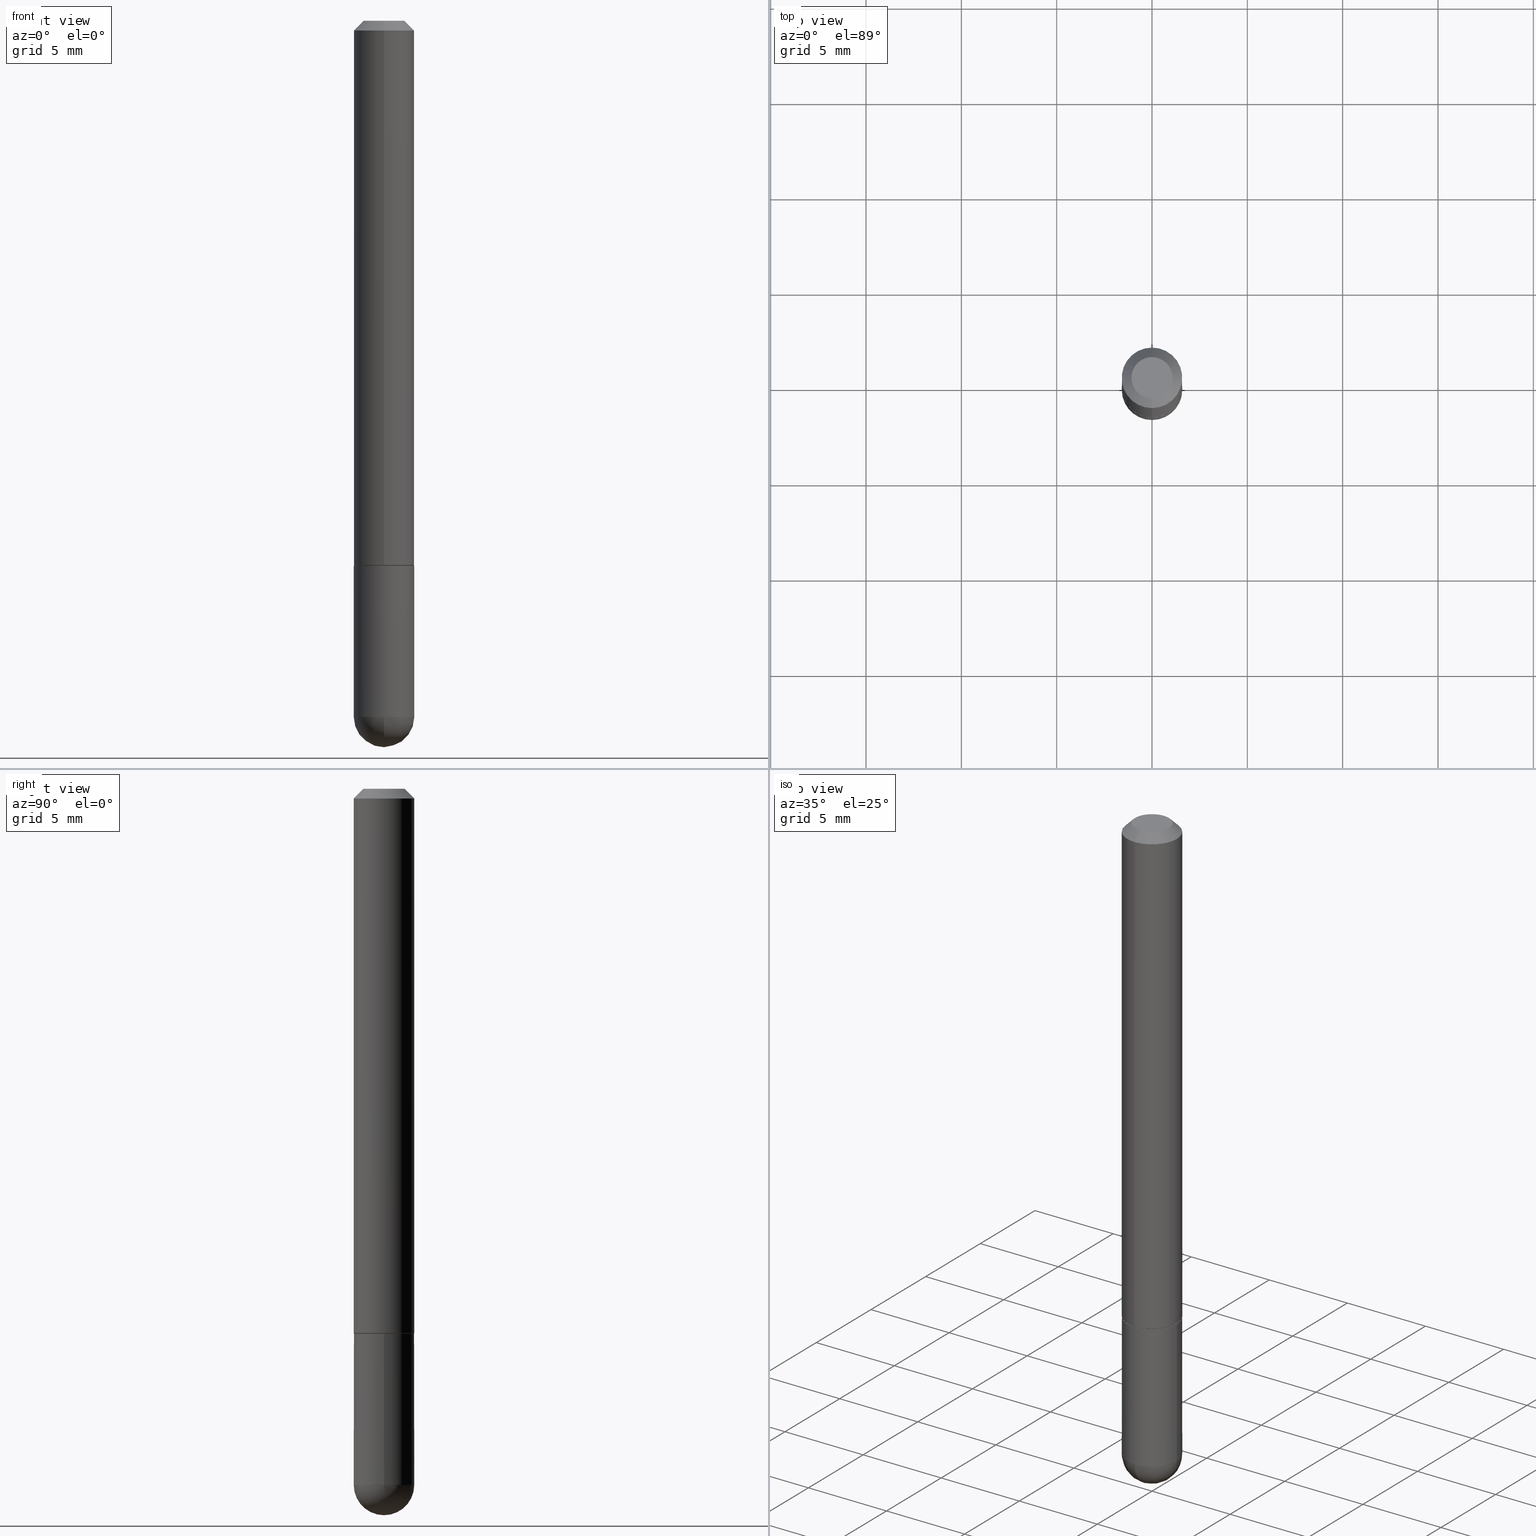
[diagram: canonical four-view strip — front | top / right | iso, engineering-drawing reading convention]
A machine part, canonical four-view strip (front | top / right | iso — engineering-drawing reading convention). The complete STEP part file that produces these views, byte-faithful:
ISO-10303-21;
HEADER;
FILE_DESCRIPTION (( 'STEP AP203' ),
    '1' );
FILE_NAME ('39078.STEP',
    '2024-02-21T19:20:46',
    ( '' ),
    ( '' ),
    'SwSTEP 2.0',
    'SolidWorks 2023',
    '' );
FILE_SCHEMA (( 'CONFIG_CONTROL_DESIGN' ));
ENDSEC;

DATA;
#1 = ADVANCED_FACE ( 'NONE', ( #42 ), #290, .F. ) ;
#2 = EDGE_LOOP ( 'NONE', ( #132, #406, #73, #159 ) ) ;
#3 = MECHANICAL_CONTEXT ( 'NONE', #303, 'mechanical' ) ;
#4 = DIRECTION ( 'NONE',  ( -1.000000000000000000, 6.982962677686265922E-15, -4.876176775795935793E-29 ) ) ;
#5 = AXIS2_PLACEMENT_3D ( 'NONE', #106, #361, #298 ) ;
#6 = ORIENTED_EDGE ( 'NONE', *, *, #161, .T. ) ;
#7 = ORIENTED_EDGE ( 'NONE', *, *, #31, .T. ) ;
#8 = SHAPE_DEFINITION_REPRESENTATION ( #78, #57 ) ;
#9 = EDGE_CURVE ( 'NONE', #139, #188, #130, .T. ) ;
#10 = DIRECTION ( 'NONE',  ( 2.438088387897960049E-29, -3.491481338843145188E-15, -1.000000000000000000 ) ) ;
#11 = CC_DESIGN_PERSON_AND_ORGANIZATION_ASSIGNMENT ( #255, #121, ( #307 ) ) ;
#12 = APPROVAL_PERSON_ORGANIZATION ( #272, #178, #244 ) ;
#13 = ORIENTED_EDGE ( 'NONE', *, *, #350, .T. ) ;
#14 = DIRECTION ( 'NONE',  ( 6.982962677686266711E-15, 1.000000000000000000, 0.000000000000000000 ) ) ;
#15 = APPROVAL ( #291, 'UNSPECIFIED' ) ;
#16 = DIRECTION ( 'NONE',  ( 6.982962677686265922E-15, 1.000000000000000000, -3.551402391763545142E-15 ) ) ;
#17 = DIRECTION ( 'NONE',  ( 1.000000000000000000, -6.982962677686269077E-15, 0.000000000000000000 ) ) ;
#18 = AXIS2_PLACEMENT_3D ( 'NONE', #160, #235, #261 ) ;
#19 = CARTESIAN_POINT ( 'NONE',  ( 0.06250000000000001388, -4.364351673553930105E-15, -1.124999999999999778 ) ) ;
#20 = DIRECTION ( 'NONE',  ( -2.424521167318213835E-29, 3.521479549966140772E-15, 1.000000000000000000 ) ) ;
#21 = PERSON_AND_ORGANIZATION_ROLE ( 'creator' ) ;
#22 = FACE_OUTER_BOUND ( 'NONE', #202, .T. ) ;
#23 =( LENGTH_UNIT ( ) NAMED_UNIT ( * ) SI_UNIT ( $, .METRE. ) );
#24 = ORIENTED_EDGE ( 'NONE', *, *, #9, .F. ) ;
#25 = PERSON_AND_ORGANIZATION_ROLE ( 'design_supplier' ) ;
#26 = LINE ( 'NONE', #352, #90 ) ;
#27 = ORIENTED_EDGE ( 'NONE', *, *, #105, .F. ) ;
#28 = CARTESIAN_POINT ( 'NONE',  ( -4.294522046776783901E-16, -0.06150000000000400979, -1.124999999999999556 ) ) ;
#29 = ORIENTED_EDGE ( 'NONE', *, *, #400, .F. ) ;
#30 = PERSON ( 'UNSPECIFIED', 'UNSPECIFIED', 'UNSPECIFIED', ('UNSPECIFIED'), ('UNSPECIFIED'), ('UNSPECIFIED') ) ;
#31 = EDGE_CURVE ( 'NONE', #67, #390, #296, .T. ) ;
#32 = AXIS2_PLACEMENT_3D ( 'NONE', #83, #61, #191 ) ;
#33 = CARTESIAN_POINT ( 'NONE',  ( 2.725161792065672302E-29, -3.958143014161942091E-15, -1.124000000000000110 ) ) ;
#34 = EDGE_LOOP ( 'NONE', ( #103, #162, #24, #367, #266 ) ) ;
#35 =( NAMED_UNIT ( * ) SI_UNIT ( $, .STERADIAN. ) SOLID_ANGLE_UNIT ( ) );
#36 = VERTEX_POINT ( 'NONE', #236 ) ;
#37 = ADVANCED_FACE ( 'NONE', ( #233 ), #44, .T. ) ;
#38 = CARTESIAN_POINT ( 'NONE',  ( 4.364351673554192795E-16, 0.06249999999999608646, -1.125000000000000222 ) ) ;
#39 = VECTOR ( 'NONE', #251, 39.37007874015748143 ) ;
#40 = APPROVAL_ROLE ( '' ) ;
#41 = DIRECTION ( 'NONE',  ( -2.445468806185136597E-29, 3.491481338843145583E-15, 1.000000000000000000 ) ) ;
#42 = FACE_OUTER_BOUND ( 'NONE', #366, .T. ) ;
#43 = DIMENSIONAL_EXPONENTS ( 1.000000000000000000, 0.000000000000000000, 0.000000000000000000, 0.000000000000000000, 0.000000000000000000, 0.000000000000000000, 0.000000000000000000 ) ;
#44 = CYLINDRICAL_SURFACE ( 'NONE', #331, 0.06249999999999997918 ) ;
#45 = EDGE_CURVE ( 'NONE', #87, #155, #246, .T. ) ;
#46 = CARTESIAN_POINT ( 'NONE',  ( 2.727586313232990179E-29, -3.961664493711907432E-15, -1.124999999999999778 ) ) ;
#47 = LOCAL_TIME ( 14, 20, 46.00000000000000000, #355 ) ;
#48 = CARTESIAN_POINT ( 'NONE',  ( 4.849042334636444380E-31, -7.042959099932305852E-17, -0.02000000000000006981 ) ) ;
#49 = DIRECTION ( 'NONE',  ( 1.000000000000000000, -6.982962677686268288E-15, 0.000000000000000000 ) ) ;
#50 = EDGE_CURVE ( 'NONE', #258, #409, #112, .T. ) ;
#51 = DIRECTION ( 'NONE',  ( -6.982962677686266711E-15, -1.000000000000000000, 3.521479549966141167E-15 ) ) ;
#52 = AXIS2_PLACEMENT_3D ( 'NONE', #38, #10, #4 ) ;
#53 = LOCAL_TIME ( 14, 20, 46.00000000000000000, #383 ) ;
#54 = LINE ( 'NONE', #76, #195 ) ;
#55 = DIRECTION ( 'NONE',  ( -2.424521167318213835E-29, 3.521479549966140772E-15, 1.000000000000000000 ) ) ;
#56 = ORIENTED_EDGE ( 'NONE', *, *, #147, .T. ) ;
#57 = ADVANCED_BREP_SHAPE_REPRESENTATION ( '39078', ( #95, #102, #18 ), #378 ) ;
#58 = DIRECTION ( 'NONE',  ( -2.424521167318213835E-29, 3.521479549966140772E-15, 1.000000000000000000 ) ) ;
#59 = AXIS2_PLACEMENT_3D ( 'NONE', #256, #91, #259 ) ;
#60 = CARTESIAN_POINT ( 'NONE',  ( 3.184241630977247611E-29, -5.493186792727071849E-15, -1.437500000000000000 ) ) ;
#61 = DIRECTION ( 'NONE',  ( -2.424521167318213835E-29, 3.521479549966140772E-15, 1.000000000000000000 ) ) ;
#62 = EDGE_CURVE ( 'NONE', #258, #327, #292, .T. ) ;
#63 = CARTESIAN_POINT ( 'NONE',  ( 4.849042334636444380E-31, -7.042959099932305852E-17, -0.02000000000000006981 ) ) ;
#64 = ORIENTED_EDGE ( 'NONE', *, *, #161, .F. ) ;
#65 = ORIENTED_EDGE ( 'NONE', *, *, #270, .F. ) ;
#66 = CARTESIAN_POINT ( 'NONE',  ( -6.136879143860255747E-45, 8.913469058148759608E-31, 2.531171608886515412E-16 ) ) ;
#67 = VERTEX_POINT ( 'NONE', #109 ) ;
#68 = DATE_AND_TIME ( #295, #47 ) ;
#69 = AXIS2_PLACEMENT_3D ( 'NONE', #116, #181, #341 ) ;
#70 = CC_DESIGN_APPROVAL ( #178, ( #172 ) ) ;
#71 =( CONVERSION_BASED_UNIT ( 'INCH', #323 ) LENGTH_UNIT ( ) NAMED_UNIT ( #43 ) );
#72 = ORIENTED_EDGE ( 'NONE', *, *, #287, .F. ) ;
#73 = ORIENTED_EDGE ( 'NONE', *, *, #328, .T. ) ;
#74 = EDGE_CURVE ( 'NONE', #67, #289, #164, .T. ) ;
#75 = CARTESIAN_POINT ( 'NONE',  ( 0.000000000000000000, 0.000000000000000000, 0.000000000000000000 ) ) ;
#76 = CARTESIAN_POINT ( 'NONE',  ( -0.06249999999999997918, 4.440892098500624683E-16, -3.074334431409315413E-30 ) ) ;
#77 = CC_DESIGN_DATE_AND_TIME_ASSIGNMENT ( #301, #140, ( #203 ) ) ;
#78 = PRODUCT_DEFINITION_SHAPE ( 'NONE', 'NONE',  #203 ) ;
#79 = DIRECTION ( 'NONE',  ( -6.982962677686265922E-15, -1.000000000000000000, 3.521479549966140772E-15 ) ) ;
#80 = CYLINDRICAL_SURFACE ( 'NONE', #299, 0.06250000000000002776 ) ;
#81 = DIRECTION ( 'NONE',  ( -6.982962677686265922E-15, -1.000000000000000000, 4.442029257990668187E-15 ) ) ;
#82 = CIRCLE ( 'NONE', #365, 0.06250000000000001388 ) ;
#83 = CARTESIAN_POINT ( 'NONE',  ( 4.849042334636444380E-31, -7.042959099932305852E-17, -0.02000000000000006981 ) ) ;
#84 = EDGE_CURVE ( 'NONE', #200, #188, #54, .T. ) ;
#85 = CALENDAR_DATE ( 2024, 21, 2 ) ;
#86 = SPHERICAL_SURFACE ( 'NONE', #293, 0.06250000000000018041 ) ;
#87 = VERTEX_POINT ( 'NONE', #215 ) ;
#88 = CARTESIAN_POINT ( 'NONE',  ( 0.06249999999999997918, -4.364351673553915708E-16, 3.047610484872459170E-30 ) ) ;
#89 = CIRCLE ( 'NONE', #324, 0.06249999999999995143 ) ;
#90 = VECTOR ( 'NONE', #156, 39.37007874015748143 ) ;
#91 = DIRECTION ( 'NONE',  ( -2.445468806185136597E-29, 3.491481338843145583E-15, 1.000000000000000000 ) ) ;
#92 = ADVANCED_FACE ( 'NONE', ( #274 ), #80, .T. ) ;
#93 = ORIENTED_EDGE ( 'NONE', *, *, #174, .F. ) ;
#94 = FACE_OUTER_BOUND ( 'NONE', #380, .T. ) ;
#95 = MANIFOLD_SOLID_BREP ( 'Body-Move/Copy2[1]', #382 ) ;
#96 = CARTESIAN_POINT ( 'NONE',  ( 2.751152406958278111E-29, -3.927916506198538435E-15, -1.124999999999999778 ) ) ;
#97 = EDGE_CURVE ( 'NONE', #36, #327, #89, .T. ) ;
#98 = CONICAL_SURFACE ( 'NONE', #113, 0.06249999999999995143, 0.7853981633974469467 ) ;
#99 = APPROVAL_STATUS ( 'not_yet_approved' ) ;
#100 = CARTESIAN_POINT ( 'NONE',  ( 4.369837824924891688E-16, 0.06149999999999608558, -1.125000000000000222 ) ) ;
#101 = ORIENTED_EDGE ( 'NONE', *, *, #147, .F. ) ;
#102 = MANIFOLD_SOLID_BREP ( 'Body-Move/Copy2[2]', #339 ) ;
#103 = ORIENTED_EDGE ( 'NONE', *, *, #228, .T. ) ;
#104 = AXIS2_PLACEMENT_3D ( 'NONE', #245, #302, #14 ) ;
#105 = EDGE_CURVE ( 'NONE', #409, #258, #144, .T. ) ;
#106 = CARTESIAN_POINT ( 'NONE',  ( 3.515361408891134418E-29, -5.019004424587023131E-15, -1.437500000000000222 ) ) ;
#107 = DIRECTION ( 'NONE',  ( -2.424521167318213835E-29, 3.521479549966140772E-15, 1.000000000000000000 ) ) ;
#108 = APPROVAL_STATUS ( 'not_yet_approved' ) ;
#109 = CARTESIAN_POINT ( 'NONE',  ( 4.405364961712898701E-16, 0.06149999999999608558, -1.125000000000000222 ) ) ;
#110 = ADVANCED_FACE ( 'NONE', ( #401 ), #127, .T. ) ;
#111 = AXIS2_PLACEMENT_3D ( 'NONE', #66, #321, #163 ) ;
#112 = CIRCLE ( 'NONE', #111, 0.04249999999999968386 ) ;
#113 = AXIS2_PLACEMENT_3D ( 'NONE', #63, #194, #317 ) ;
#114 = FACE_OUTER_BOUND ( 'NONE', #225, .T. ) ;
#115 = APPROVAL_DATE_TIME ( #278, #15 ) ;
#116 = CARTESIAN_POINT ( 'NONE',  ( -6.136879143860255747E-45, 8.913469058148759608E-31, 2.531171608886515412E-16 ) ) ;
#117 = DIRECTION ( 'NONE',  ( -2.424521167318213835E-29, 3.521479549966140772E-15, 1.000000000000000000 ) ) ;
#118 = DIRECTION ( 'NONE',  ( 6.982962677686265922E-15, 1.000000000000000000, -4.370956789862807739E-15 ) ) ;
#119 = CONICAL_SURFACE ( 'NONE', #281, 0.06150000000000004768, 0.7853981633975849475 ) ;
#120 = VECTOR ( 'NONE', #219, 39.37007874015748143 ) ;
#121 = PERSON_AND_ORGANIZATION_ROLE ( 'classification_officer' ) ;
#122 = CARTESIAN_POINT ( 'NONE',  ( -3.601761448830038135E-16, -0.04249999999999968386, 4.027800417622114304E-16 ) ) ;
#123 = ORIENTED_EDGE ( 'NONE', *, *, #74, .F. ) ;
#124 = DIRECTION ( 'NONE',  ( 6.982962677686265922E-15, 1.000000000000000000, -4.370956789862807739E-15 ) ) ;
#125 = ADVANCED_FACE ( 'NONE', ( #176 ), #119, .T. ) ;
#126 = DIRECTION ( 'NONE',  ( -1.000000000000000000, 6.982962677686265922E-15, -4.883557194083112340E-29 ) ) ;
#127 = CONICAL_SURFACE ( 'NONE', #403, 0.06150000000000004768, 0.7853981633975849475 ) ;
#128 = CARTESIAN_POINT ( 'NONE',  ( 3.666055405785279275E-16, 0.04249999999999968386, 1.034542800150916889E-16 ) ) ;
#129 = ORIENTED_EDGE ( 'NONE', *, *, #50, .T. ) ;
#130 = CIRCLE ( 'NONE', #397, 0.06250000000000001388 ) ;
#131 = LOCAL_TIME ( 14, 20, 46.00000000000000000, #177 ) ;
#132 = ORIENTED_EDGE ( 'NONE', *, *, #186, .F. ) ;
#133 = ORIENTED_EDGE ( 'NONE', *, *, #260, .T. ) ;
#134 = APPROVAL_DATE_TIME ( #68, #267 ) ;
#135 = ADVANCED_FACE ( 'NONE', ( #394 ), #395, .T. ) ;
#136 = CARTESIAN_POINT ( 'NONE',  ( 0.000000000000000000, 0.000000000000000000, 0.000000000000000000 ) ) ;
#137 = AXIS2_PLACEMENT_3D ( 'NONE', #46, #107, #335 ) ;
#138 = AXIS2_PLACEMENT_3D ( 'NONE', #312, #282, #405 ) ;
#139 = VERTEX_POINT ( 'NONE', #19 ) ;
#140 = DATE_TIME_ROLE ( 'creation_date' ) ;
#141 = CARTESIAN_POINT ( 'NONE',  ( 4.440892098500628134E-16, 0.06250000000000002776, -2.200924718728839215E-16 ) ) ;
#142 = DATE_AND_TIME ( #336, #257 ) ;
#143 = CARTESIAN_POINT ( 'NONE',  ( -0.06249999999999995143, -4.029371255542718167E-15, -1.437500000000000222 ) ) ;
#144 = CIRCLE ( 'NONE', #69, 0.04249999999999968386 ) ;
#145 = DIRECTION ( 'NONE',  ( -6.982962677686265922E-15, -1.000000000000000000, 4.442029257990668187E-15 ) ) ;
#146 = CARTESIAN_POINT ( 'NONE',  ( 4.364351673554256397E-16, 0.06249999999999480971, -1.437500000000000444 ) ) ;
#147 = EDGE_CURVE ( 'NONE', #188, #139, #82, .T. ) ;
#148 = CARTESIAN_POINT ( 'NONE',  ( 2.727586313232990179E-29, -3.961664493711907432E-15, -1.124999999999999778 ) ) ;
#149 = CARTESIAN_POINT ( 'NONE',  ( 4.440892098500770129E-16, 0.06249999999999615585, -1.124000000000000332 ) ) ;
#150 = AXIS2_PLACEMENT_3D ( 'NONE', #408, #126, #124 ) ;
#151 = ORIENTED_EDGE ( 'NONE', *, *, #243, .T. ) ;
#152 = CARTESIAN_POINT ( 'NONE',  ( -4.364351673553652426E-16, -0.06250000000000408007, -1.123999999999999888 ) ) ;
#153 = ORIENTED_EDGE ( 'NONE', *, *, #228, .F. ) ;
#154 = DIRECTION ( 'NONE',  ( -6.982962677686266711E-15, -1.000000000000000000, 3.521479549966141167E-15 ) ) ;
#155 = VERTEX_POINT ( 'NONE', #306 ) ;
#156 = DIRECTION ( 'NONE',  ( -2.424521167318214115E-29, 3.521479549966140772E-15, 1.000000000000000000 ) ) ;
#157 = VERTEX_POINT ( 'NONE', #146 ) ;
#158 = VECTOR ( 'NONE', #407, 39.37007874015748143 ) ;
#159 = ORIENTED_EDGE ( 'NONE', *, *, #260, .F. ) ;
#160 = CARTESIAN_POINT ( 'NONE',  ( 0.000000000000000000, 0.000000000000000000, 0.000000000000000000 ) ) ;
#161 = EDGE_CURVE ( 'NONE', #289, #67, #222, .T. ) ;
#162 = ORIENTED_EDGE ( 'NONE', *, *, #84, .T. ) ;
#163 = DIRECTION ( 'NONE',  ( -6.982962677686265922E-15, -1.000000000000000000, 3.521479549966140772E-15 ) ) ;
#164 = CIRCLE ( 'NONE', #137, 0.06150000000000004768 ) ;
#165 = AXIS2_PLACEMENT_3D ( 'NONE', #247, #373, #79 ) ;
#166 = AXIS2_PLACEMENT_3D ( 'NONE', #308, #207, #175 ) ;
#167 = APPLICATION_PROTOCOL_DEFINITION ( 'international standard', 'config_control_design', 1994, #303 ) ;
#168 = CARTESIAN_POINT ( 'NONE',  ( 4.364351673553917187E-16, 0.06249999999999988204, -0.02000000000000029185 ) ) ;
#169 = EDGE_LOOP ( 'NONE', ( #351, #286, #201, #326 ) ) ;
#170 = UNCERTAINTY_MEASURE_WITH_UNIT (LENGTH_MEASURE( 1.000000000000000082E-05 ), #71, 'distance_accuracy_value', 'NONE');
#171 = ORIENTED_EDGE ( 'NONE', *, *, #243, .F. ) ;
#172 = PRODUCT_DEFINITION_FORMATION_WITH_SPECIFIED_SOURCE ( 'ANY', '', #277, .NOT_KNOWN. ) ;
#173 = CALENDAR_DATE ( 2024, 21, 2 ) ;
#174 = EDGE_CURVE ( 'NONE', #269, #157, #348, .T. ) ;
#175 = DIRECTION ( 'NONE',  ( -6.982962677686265922E-15, -1.000000000000000000, 4.442029257990668187E-15 ) ) ;
#176 = FACE_OUTER_BOUND ( 'NONE', #196, .T. ) ;
#177 = COORDINATED_UNIVERSAL_TIME_OFFSET ( 5, 0, .BEHIND. ) ;
#178 = APPROVAL ( #108, 'UNSPECIFIED' ) ;
#179 = LINE ( 'NONE', #276, #39 ) ;
#180 = DIRECTION ( 'NONE',  ( 1.000000000000000000, -6.982962677686267499E-15, 4.876176775795936353E-29 ) ) ;
#181 = DIRECTION ( 'NONE',  ( -2.424521167318213835E-29, 3.521479549966140772E-15, 1.000000000000000000 ) ) ;
#182 = CYLINDRICAL_SURFACE ( 'NONE', #263, 0.06250000000000002776 ) ;
#183 = EDGE_LOOP ( 'NONE', ( #27, #151, #230, #190 ) ) ;
#184 = DATE_TIME_ROLE ( 'classification_date' ) ;
#185 = DIRECTION ( 'NONE',  ( -1.000000000000000000, 6.982962677686265922E-15, -4.883557194083112340E-29 ) ) ;
#186 = EDGE_CURVE ( 'NONE', #390, #327, #279, .T. ) ;
#187 = AXIS2_PLACEMENT_3D ( 'NONE', #315, #384, #284 ) ;
#188 = VERTEX_POINT ( 'NONE', #209 ) ;
#189 = SPHERICAL_SURFACE ( 'NONE', #150, 0.06250000000000018041 ) ;
#190 = ORIENTED_EDGE ( 'NONE', *, *, #62, .F. ) ;
#191 = DIRECTION ( 'NONE',  ( -6.982962677686265922E-15, -1.000000000000000000, 3.551402391763545142E-15 ) ) ;
#192 = PRODUCT_RELATED_PRODUCT_CATEGORY ( 'detail', '', ( #277 ) ) ;
#193 = EDGE_LOOP ( 'NONE', ( #199, #363, #283, #13, #101 ) ) ;
#194 = DIRECTION ( 'NONE',  ( 2.424521167318213835E-29, -3.521479549966140772E-15, -1.000000000000000000 ) ) ;
#195 = VECTOR ( 'NONE', #375, 39.37007874015748143 ) ;
#196 = EDGE_LOOP ( 'NONE', ( #314, #240, #271, #358 ) ) ;
#197 = LOCAL_TIME ( 14, 20, 46.00000000000000000, #206 ) ;
#198 = ADVANCED_FACE ( 'NONE', ( #273 ), #347, .T. ) ;
#199 = ORIENTED_EDGE ( 'NONE', *, *, #84, .F. ) ;
#200 = VERTEX_POINT ( 'NONE', #143 ) ;
#201 = ORIENTED_EDGE ( 'NONE', *, *, #97, .F. ) ;
#202 = EDGE_LOOP ( 'NONE', ( #93, #262, #217, #153 ) ) ;
#203 = PRODUCT_DEFINITION ( 'UNKNOWN', '', #172, #229 ) ;
#204 = ORIENTED_EDGE ( 'NONE', *, *, #62, .T. ) ;
#205 = ADVANCED_FACE ( 'NONE', ( #114 ), #399, .F. ) ;
#206 = COORDINATED_UNIVERSAL_TIME_OFFSET ( 5, 0, .BEHIND. ) ;
#207 = DIRECTION ( 'NONE',  ( -2.424521167318213835E-29, 3.521479549966140772E-15, 1.000000000000000000 ) ) ;
#208 = CIRCLE ( 'NONE', #318, 0.06250000000000012490 ) ;
#209 = CARTESIAN_POINT ( 'NONE',  ( -0.06250000000000001388, -4.029371255542718167E-15, -1.124999999999999778 ) ) ;
#210 = COORDINATED_UNIVERSAL_TIME_OFFSET ( 5, 0, .BEHIND. ) ;
#211 = CARTESIAN_POINT ( 'NONE',  ( 3.515361408891134418E-29, -5.019004424587023131E-15, -1.437500000000000222 ) ) ;
#212 = CARTESIAN_POINT ( 'NONE',  ( 0.000000000000000000, 0.000000000000000000, 0.000000000000000000 ) ) ;
#213 = PERSON_AND_ORGANIZATION ( #30, #404 ) ;
#214 = AXIS2_PLACEMENT_3D ( 'NONE', #211, #337, #49 ) ;
#215 = CARTESIAN_POINT ( 'NONE',  ( -4.440892098500294840E-16, -0.06250000000000532907, -1.437500000000000000 ) ) ;
#216 = DIRECTION ( 'NONE',  ( -6.982962677686265133E-15, -1.000000000000000000, 4.370956789862812472E-15 ) ) ;
#217 = ORIENTED_EDGE ( 'NONE', *, *, #264, .F. ) ;
#218 = DATE_AND_TIME ( #85, #53 ) ;
#219 = DIRECTION ( 'NONE',  ( -2.445468806185136877E-29, 3.491481338843145188E-15, 1.000000000000000000 ) ) ;
#220 = ORIENTED_EDGE ( 'NONE', *, *, #45, .F. ) ;
#221 = FACE_OUTER_BOUND ( 'NONE', #227, .T. ) ;
#222 = CIRCLE ( 'NONE', #166, 0.06150000000000004768 ) ;
#223 = EDGE_LOOP ( 'NONE', ( #171, #319, #204, #133 ) ) ;
#224 = DIRECTION ( 'NONE',  ( 2.424521167318213554E-29, -3.521479549966140772E-15, -1.000000000000000000 ) ) ;
#225 = EDGE_LOOP ( 'NONE', ( #64, #123 ) ) ;
#226 = PLANE ( 'NONE',  #357 ) ;
#227 = EDGE_LOOP ( 'NONE', ( #65, #345, #29, #220 ) ) ;
#228 = EDGE_CURVE ( 'NONE', #157, #200, #392, .T. ) ;
#229 = DESIGN_CONTEXT ( 'detailed design', #322, 'design' ) ;
#230 = ORIENTED_EDGE ( 'NONE', *, *, #97, .T. ) ;
#231 = CIRCLE ( 'NONE', #59, 0.06249999999999995143 ) ;
#232 = PERSON_AND_ORGANIZATION ( #30, #404 ) ;
#233 = FACE_OUTER_BOUND ( 'NONE', #34, .T. ) ;
#234 = PERSON_AND_ORGANIZATION ( #30, #404 ) ;
#235 = DIRECTION ( 'NONE',  ( 0.000000000000000000, 0.000000000000000000, 1.000000000000000000 ) ) ;
#236 = CARTESIAN_POINT ( 'NONE',  ( -4.287811248607198352E-16, -0.06250000000000001388, -0.01999999999999984776 ) ) ;
#237 = ORIENTED_EDGE ( 'NONE', *, *, #369, .F. ) ;
#238 = CIRCLE ( 'NONE', #325, 0.06250000000000012490 ) ;
#239 = CC_DESIGN_SECURITY_CLASSIFICATION ( #307, ( #172 ) ) ;
#240 = ORIENTED_EDGE ( 'NONE', *, *, #74, .T. ) ;
#241 = CALENDAR_DATE ( 2024, 21, 2 ) ;
#242 = DIRECTION ( 'NONE',  ( -2.445468806185136597E-29, 3.491481338843145583E-15, 1.000000000000000000 ) ) ;
#243 = EDGE_CURVE ( 'NONE', #409, #36, #179, .T. ) ;
#244 = APPROVAL_ROLE ( '' ) ;
#245 = CARTESIAN_POINT ( 'NONE',  ( 3.184241630977247611E-29, -5.493186792727071849E-15, -1.437500000000000000 ) ) ;
#246 = CIRCLE ( 'NONE', #5, 0.06249999999999995143 ) ;
#247 = CARTESIAN_POINT ( 'NONE',  ( 2.727586313232990179E-29, -3.961664493711907432E-15, -1.124999999999999778 ) ) ;
#248 = DIRECTION ( 'NONE',  ( -2.424521167318213835E-29, 3.521479549966140772E-15, 1.000000000000000000 ) ) ;
#249 = DIRECTION ( 'NONE',  ( 4.937700262164540942E-15, 0.7071067811865441310, -0.7071067811865509034 ) ) ;
#250 = PERSON_AND_ORGANIZATION ( #30, #404 ) ;
#251 = DIRECTION ( 'NONE',  ( -4.851104656540957175E-15, -0.7071067811865490160, -0.7071067811865460184 ) ) ;
#252 = ADVANCED_FACE ( 'NONE', ( #22 ), #189, .T. ) ;
#253 = VERTEX_POINT ( 'NONE', #152 ) ;
#254 = LINE ( 'NONE', #28, #158 ) ;
#255 = PERSON_AND_ORGANIZATION ( #30, #404 ) ;
#256 = CARTESIAN_POINT ( 'NONE',  ( 3.515361408891134418E-29, -5.019004424587023131E-15, -1.437500000000000222 ) ) ;
#257 = LOCAL_TIME ( 14, 20, 46.00000000000000000, #210 ) ;
#258 = VERTEX_POINT ( 'NONE', #128 ) ;
#259 = DIRECTION ( 'NONE',  ( 1.000000000000000000, -6.982962677686268288E-15, 0.000000000000000000 ) ) ;
#260 = EDGE_CURVE ( 'NONE', #327, #36, #275, .T. ) ;
#261 = DIRECTION ( 'NONE',  ( 1.000000000000000000, 0.000000000000000000, 0.000000000000000000 ) ) ;
#262 = ORIENTED_EDGE ( 'NONE', *, *, #270, .T. ) ;
#263 = AXIS2_PLACEMENT_3D ( 'NONE', #310, #58, #154 ) ;
#264 = EDGE_CURVE ( 'NONE', #200, #87, #231, .T. ) ;
#265 = DIRECTION ( 'NONE',  ( -2.445468806185136597E-29, 3.491481338843145583E-15, 1.000000000000000000 ) ) ;
#266 = ORIENTED_EDGE ( 'NONE', *, *, #400, .T. ) ;
#267 = APPROVAL ( #99, 'UNSPECIFIED' ) ;
#268 =( NAMED_UNIT ( * ) PLANE_ANGLE_UNIT ( ) SI_UNIT ( $, .RADIAN. ) );
#269 = VERTEX_POINT ( 'NONE', #379 ) ;
#270 = EDGE_CURVE ( 'NONE', #269, #87, #387, .T. ) ;
#271 = ORIENTED_EDGE ( 'NONE', *, *, #287, .T. ) ;
#272 = PERSON_AND_ORGANIZATION ( #30, #404 ) ;
#273 = FACE_OUTER_BOUND ( 'NONE', #223, .T. ) ;
#274 = FACE_OUTER_BOUND ( 'NONE', #169, .T. ) ;
#275 = CIRCLE ( 'NONE', #32, 0.06249999999999995143 ) ;
#276 = CARTESIAN_POINT ( 'NONE',  ( -4.287811248607198352E-16, -0.06250000000000001388, -0.01999999999999984776 ) ) ;
#277 = PRODUCT ( '39078', '39078', '', ( #3 ) ) ;
#278 = DATE_AND_TIME ( #241, #131 ) ;
#279 = LINE ( 'NONE', #141, #300 ) ;
#280 = DIRECTION ( 'NONE',  ( -2.424521167318213835E-29, 3.521479549966140772E-15, 1.000000000000000000 ) ) ;
#281 = AXIS2_PLACEMENT_3D ( 'NONE', #148, #338, #145 ) ;
#282 = DIRECTION ( 'NONE',  ( -2.445468806185136597E-29, 3.491481338843145583E-15, 1.000000000000000000 ) ) ;
#283 = ORIENTED_EDGE ( 'NONE', *, *, #45, .T. ) ;
#284 = DIRECTION ( 'NONE',  ( -7.105427357601001859E-15, -1.000000000000000000, 0.000000000000000000 ) ) ;
#285 = SECURITY_CLASSIFICATION_LEVEL ( 'unclassified' ) ;
#286 = ORIENTED_EDGE ( 'NONE', *, *, #186, .T. ) ;
#287 = EDGE_CURVE ( 'NONE', #289, #253, #254, .T. ) ;
#288 = APPROVAL_PERSON_ORGANIZATION ( #234, #267, #391 ) ;
#289 = VERTEX_POINT ( 'NONE', #381 ) ;
#290 = PLANE ( 'NONE',  #52 ) ;
#291 = APPROVAL_STATUS ( 'not_yet_approved' ) ;
#292 = LINE ( 'NONE', #168, #346 ) ;
#293 = AXIS2_PLACEMENT_3D ( 'NONE', #60, #185, #118 ) ;
#294 = ORIENTED_EDGE ( 'NONE', *, *, #105, .T. ) ;
#295 = CALENDAR_DATE ( 2024, 21, 2 ) ;
#296 = LINE ( 'NONE', #100, #316 ) ;
#297 = ADVANCED_FACE ( 'NONE', ( #94 ), #226, .F. ) ;
#298 = DIRECTION ( 'NONE',  ( 1.000000000000000000, -6.982962677686268288E-15, 0.000000000000000000 ) ) ;
#299 = AXIS2_PLACEMENT_3D ( 'NONE', #212, #117, #51 ) ;
#300 = VECTOR ( 'NONE', #396, 39.37007874015748143 ) ;
#301 = DATE_AND_TIME ( #173, #197 ) ;
#302 = DIRECTION ( 'NONE',  ( 1.000000000000000000, -6.982962677686265922E-15, 4.883557194083112340E-29 ) ) ;
#303 = APPLICATION_CONTEXT ( 'configuration controlled 3d designs of mechanical parts and assemblies' ) ;
#304 = PERSON_AND_ORGANIZATION_ROLE ( 'creator' ) ;
#305 = DIRECTION ( 'NONE',  ( 2.424521167318213835E-29, -3.521479549966140772E-15, -1.000000000000000000 ) ) ;
#306 = CARTESIAN_POINT ( 'NONE',  ( 0.06249999999999995143, -4.909895632748172453E-15, -1.437500000000000222 ) ) ;
#307 = SECURITY_CLASSIFICATION ( '', '', #285 ) ;
#308 = CARTESIAN_POINT ( 'NONE',  ( 2.727586313232990179E-29, -3.961664493711907432E-15, -1.124999999999999778 ) ) ;
#309 = CARTESIAN_POINT ( 'NONE',  ( 2.727586313232990179E-29, -3.961664493711907432E-15, -1.124999999999999778 ) ) ;
#310 = CARTESIAN_POINT ( 'NONE',  ( 0.000000000000000000, 0.000000000000000000, 0.000000000000000000 ) ) ;
#311 = APPROVAL_PERSON_ORGANIZATION ( #320, #15, #40 ) ;
#312 = CARTESIAN_POINT ( 'NONE',  ( 3.515361408891134418E-29, -5.019004424587023131E-15, -1.437500000000000222 ) ) ;
#313 = DIRECTION ( 'NONE',  ( -6.982962677686265133E-15, -1.000000000000000000, 4.370956789862812472E-15 ) ) ;
#314 = ORIENTED_EDGE ( 'NONE', *, *, #31, .F. ) ;
#315 = CARTESIAN_POINT ( 'NONE',  ( 3.184241630977247611E-29, -5.493186792727071849E-15, -1.437500000000000000 ) ) ;
#316 = VECTOR ( 'NONE', #389, 39.37007874015748143 ) ;
#317 = DIRECTION ( 'NONE',  ( 6.982962677686265922E-15, 1.000000000000000000, -3.551402391763545142E-15 ) ) ;
#318 = AXIS2_PLACEMENT_3D ( 'NONE', #343, #55, #313 ) ;
#319 = ORIENTED_EDGE ( 'NONE', *, *, #50, .F. ) ;
#320 = PERSON_AND_ORGANIZATION ( #30, #404 ) ;
#321 = DIRECTION ( 'NONE',  ( -2.424521167318213835E-29, 3.521479549966140772E-15, 1.000000000000000000 ) ) ;
#322 = APPLICATION_CONTEXT ( 'configuration controlled 3d designs of mechanical parts and assemblies' ) ;
#323 = LENGTH_MEASURE_WITH_UNIT ( LENGTH_MEASURE( 0.02539999999999999897 ), #23 );
#324 = AXIS2_PLACEMENT_3D ( 'NONE', #368, #248, #376 ) ;
#325 = AXIS2_PLACEMENT_3D ( 'NONE', #33, #280, #216 ) ;
#326 = ORIENTED_EDGE ( 'NONE', *, *, #328, .F. ) ;
#327 = VERTEX_POINT ( 'NONE', #356 ) ;
#328 = EDGE_CURVE ( 'NONE', #253, #36, #26, .T. ) ;
#329 = EDGE_LOOP ( 'NONE', ( #6, #7, #237, #72 ) ) ;
#330 = DIRECTION ( 'NONE',  ( -2.445468806185136597E-29, 3.491481338843145583E-15, 1.000000000000000000 ) ) ;
#331 = AXIS2_PLACEMENT_3D ( 'NONE', #136, #41, #393 ) ;
#332 = CC_DESIGN_DATE_AND_TIME_ASSIGNMENT ( #218, #184, ( #307 ) ) ;
#333 = CC_DESIGN_APPROVAL ( #267, ( #307 ) ) ;
#334 = ADVANCED_FACE ( 'NONE', ( #221 ), #86, .T. ) ;
#335 = DIRECTION ( 'NONE',  ( -6.982962677686265922E-15, -1.000000000000000000, 4.442029257990668187E-15 ) ) ;
#336 = CALENDAR_DATE ( 2024, 21, 2 ) ;
#337 = DIRECTION ( 'NONE',  ( -2.445468806185136597E-29, 3.491481338843145583E-15, 1.000000000000000000 ) ) ;
#338 = DIRECTION ( 'NONE',  ( -2.424521167318213835E-29, 3.521479549966140772E-15, 1.000000000000000000 ) ) ;
#339 = CLOSED_SHELL ( 'NONE', ( #110, #92, #364, #198, #386, #125, #205, #297 ) ) ;
#340 = AXIS2_PLACEMENT_3D ( 'NONE', #48, #305, #16 ) ;
#341 = DIRECTION ( 'NONE',  ( -6.982962677686265922E-15, -1.000000000000000000, 3.521479549966140772E-15 ) ) ;
#342 = PERSON_AND_ORGANIZATION ( #30, #404 ) ;
#343 = CARTESIAN_POINT ( 'NONE',  ( 2.725161792065672302E-29, -3.958143014161942091E-15, -1.124000000000000110 ) ) ;
#344 = LINE ( 'NONE', #88, #120 ) ;
#345 = ORIENTED_EDGE ( 'NONE', *, *, #174, .T. ) ;
#346 = VECTOR ( 'NONE', #249, 39.37007874015748143 ) ;
#347 = CONICAL_SURFACE ( 'NONE', #340, 0.06249999999999995143, 0.7853981633974469467 ) ;
#348 = CIRCLE ( 'NONE', #104, 0.06250000000000018041 ) ;
#349 = FACE_OUTER_BOUND ( 'NONE', #2, .T. ) ;
#350 = EDGE_CURVE ( 'NONE', #155, #139, #344, .T. ) ;
#351 = ORIENTED_EDGE ( 'NONE', *, *, #369, .T. ) ;
#352 = CARTESIAN_POINT ( 'NONE',  ( -4.364351673553918666E-16, -0.06250000000000002776, 2.200924718728839215E-16 ) ) ;
#353 = ORIENTED_EDGE ( 'NONE', *, *, #9, .T. ) ;
#354 = CC_DESIGN_PERSON_AND_ORGANIZATION_ASSIGNMENT ( #232, #360, ( #277 ) ) ;
#355 = COORDINATED_UNIVERSAL_TIME_OFFSET ( 5, 0, .BEHIND. ) ;
#356 = CARTESIAN_POINT ( 'NONE',  ( 4.364351673553917187E-16, 0.06249999999999988204, -0.02000000000000029185 ) ) ;
#357 = AXIS2_PLACEMENT_3D ( 'NONE', #402, #224, #385 ) ;
#358 = ORIENTED_EDGE ( 'NONE', *, *, #377, .F. ) ;
#359 = CC_DESIGN_PERSON_AND_ORGANIZATION_ASSIGNMENT ( #213, #304, ( #203 ) ) ;
#360 = PERSON_AND_ORGANIZATION_ROLE ( 'design_owner' ) ;
#361 = DIRECTION ( 'NONE',  ( -2.445468806185136597E-29, 3.491481338843145583E-15, 1.000000000000000000 ) ) ;
#362 = APPLICATION_PROTOCOL_DEFINITION ( 'international standard', 'config_control_design', 1994, #322 ) ;
#363 = ORIENTED_EDGE ( 'NONE', *, *, #264, .T. ) ;
#364 = ADVANCED_FACE ( 'NONE', ( #412 ), #98, .T. ) ;
#365 = AXIS2_PLACEMENT_3D ( 'NONE', #370, #242, #17 ) ;
#366 = EDGE_LOOP ( 'NONE', ( #353, #56 ) ) ;
#367 = ORIENTED_EDGE ( 'NONE', *, *, #350, .F. ) ;
#368 = CARTESIAN_POINT ( 'NONE',  ( 4.849042334636444380E-31, -7.042959099932305852E-17, -0.02000000000000006981 ) ) ;
#369 = EDGE_CURVE ( 'NONE', #253, #390, #238, .T. ) ;
#370 = CARTESIAN_POINT ( 'NONE',  ( 2.751152406958278111E-29, -3.927916506198538435E-15, -1.124999999999999778 ) ) ;
#371 = CC_DESIGN_APPROVAL ( #15, ( #203 ) ) ;
#372 = APPROVAL_DATE_TIME ( #142, #178 ) ;
#373 = DIRECTION ( 'NONE',  ( -2.424521167318213554E-29, 3.521479549966140772E-15, 1.000000000000000000 ) ) ;
#374 = CC_DESIGN_PERSON_AND_ORGANIZATION_ASSIGNMENT ( #250, #21, ( #172 ) ) ;
#375 = DIRECTION ( 'NONE',  ( -2.445468806185136877E-29, 3.491481338843145188E-15, 1.000000000000000000 ) ) ;
#376 = DIRECTION ( 'NONE',  ( -6.982962677686265922E-15, -1.000000000000000000, 3.551402391763545142E-15 ) ) ;
#377 = EDGE_CURVE ( 'NONE', #390, #253, #208, .T. ) ;
#378 =( GEOMETRIC_REPRESENTATION_CONTEXT ( 3 ) GLOBAL_UNCERTAINTY_ASSIGNED_CONTEXT ( ( #170 ) ) GLOBAL_UNIT_ASSIGNED_CONTEXT ( ( #71, #268, #35 ) ) REPRESENTATION_CONTEXT ( 'NONE', 'WORKASPACE' ) );
#379 = CARTESIAN_POINT ( 'NONE',  ( 3.339755826017505008E-29, -5.707577355157432999E-15, -1.500000000000000222 ) ) ;
#380 = EDGE_LOOP ( 'NONE', ( #129, #294 ) ) ;
#381 = CARTESIAN_POINT ( 'NONE',  ( -4.294522046776783901E-16, -0.06150000000000400979, -1.124999999999999556 ) ) ;
#382 = CLOSED_SHELL ( 'NONE', ( #37, #252, #334, #1, #135 ) ) ;
#383 = COORDINATED_UNIVERSAL_TIME_OFFSET ( 5, 0, .BEHIND. ) ;
#384 = DIRECTION ( 'NONE',  ( -1.000000000000000000, 7.105427357601001070E-15, -4.926315508542082329E-29 ) ) ;
#385 = DIRECTION ( 'NONE',  ( 6.982962677686265922E-15, 1.000000000000000000, -3.521479549966140772E-15 ) ) ;
#386 = ADVANCED_FACE ( 'NONE', ( #349 ), #182, .T. ) ;
#387 = CIRCLE ( 'NONE', #187, 0.06250000000000018041 ) ;
#388 = DIRECTION ( 'NONE',  ( 1.000000000000000000, -6.982962677686269077E-15, 0.000000000000000000 ) ) ;
#389 = DIRECTION ( 'NONE',  ( 5.024295867788748699E-15, 0.7071067811866466046, 0.7071067811864484298 ) ) ;
#390 = VERTEX_POINT ( 'NONE', #149 ) ;
#391 = APPROVAL_ROLE ( '' ) ;
#392 = CIRCLE ( 'NONE', #214, 0.06249999999999995143 ) ;
#393 = DIRECTION ( 'NONE',  ( 1.000000000000000000, -6.982962677686267499E-15, 4.876176775795936353E-29 ) ) ;
#394 = FACE_OUTER_BOUND ( 'NONE', #193, .T. ) ;
#395 = CYLINDRICAL_SURFACE ( 'NONE', #398, 0.06249999999999997918 ) ;
#396 = DIRECTION ( 'NONE',  ( -2.424521167318214115E-29, 3.521479549966140772E-15, 1.000000000000000000 ) ) ;
#397 = AXIS2_PLACEMENT_3D ( 'NONE', #96, #265, #388 ) ;
#398 = AXIS2_PLACEMENT_3D ( 'NONE', #75, #330, #180 ) ;
#399 = PLANE ( 'NONE',  #165 ) ;
#400 = EDGE_CURVE ( 'NONE', #155, #157, #411, .T. ) ;
#401 = FACE_OUTER_BOUND ( 'NONE', #329, .T. ) ;
#402 = CARTESIAN_POINT ( 'NONE',  ( 2.967759138016640869E-16, 0.04249999999999968386, -2.310430042923408479E-17 ) ) ;
#403 = AXIS2_PLACEMENT_3D ( 'NONE', #309, #20, #81 ) ;
#404 = ORGANIZATION ( 'UNSPECIFIED', 'UNSPECIFIED', '' ) ;
#405 = DIRECTION ( 'NONE',  ( 1.000000000000000000, -6.982962677686268288E-15, 0.000000000000000000 ) ) ;
#406 = ORIENTED_EDGE ( 'NONE', *, *, #377, .T. ) ;
#407 = DIRECTION ( 'NONE',  ( -4.937700262165222518E-15, -0.7071067811866417196, 0.7071067811864533148 ) ) ;
#408 = CARTESIAN_POINT ( 'NONE',  ( 3.184241630977247611E-29, -5.493186792727071849E-15, -1.437500000000000000 ) ) ;
#409 = VERTEX_POINT ( 'NONE', #122 ) ;
#410 = CC_DESIGN_PERSON_AND_ORGANIZATION_ASSIGNMENT ( #342, #25, ( #172 ) ) ;
#411 = CIRCLE ( 'NONE', #138, 0.06249999999999995143 ) ;
#412 = FACE_OUTER_BOUND ( 'NONE', #183, .T. ) ;
ENDSEC;
END-ISO-10303-21;
